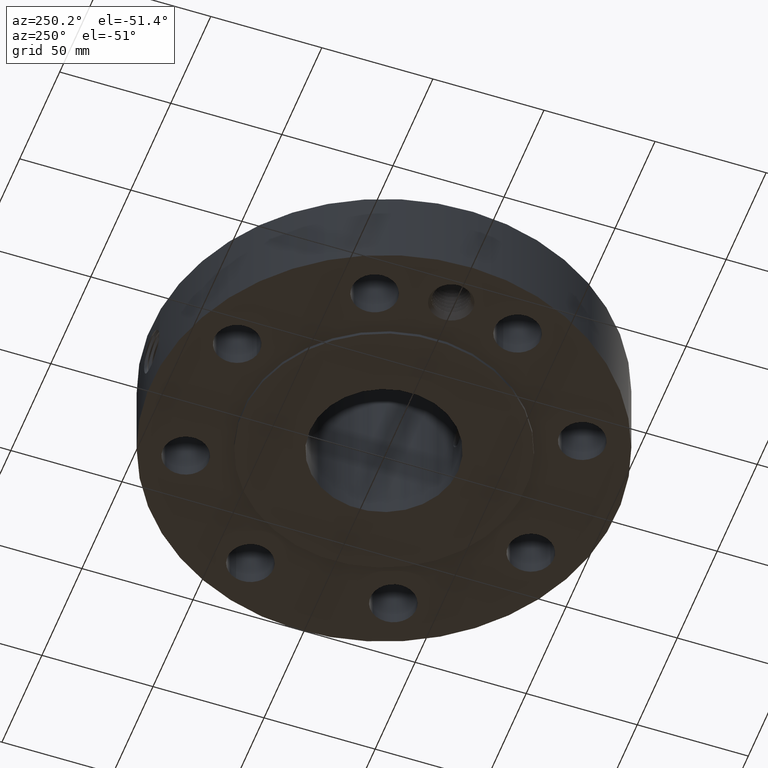
[diagram: clean part render]
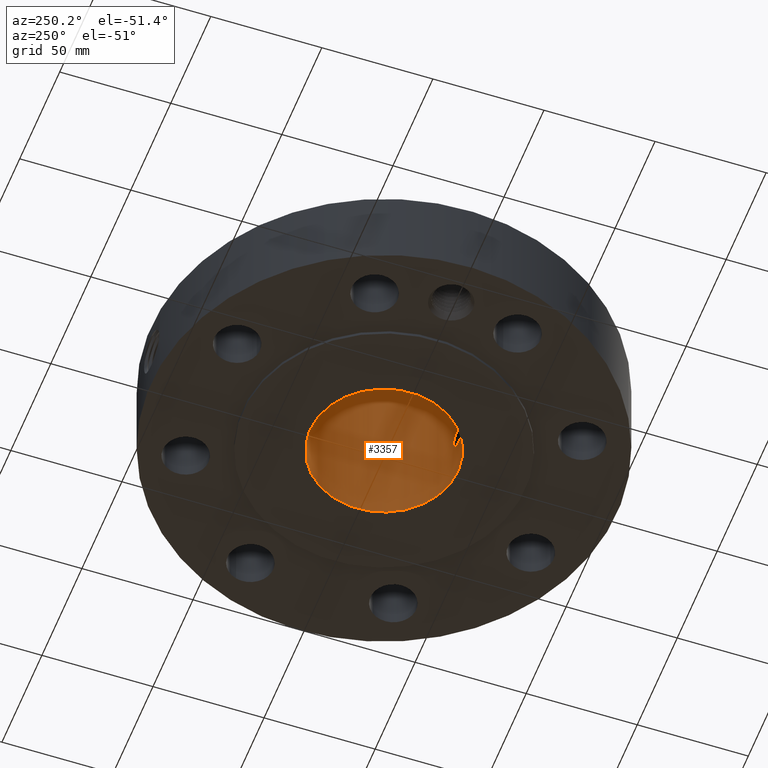
[diagram: same view with one face highlighted and labeled with its STEP entity id]
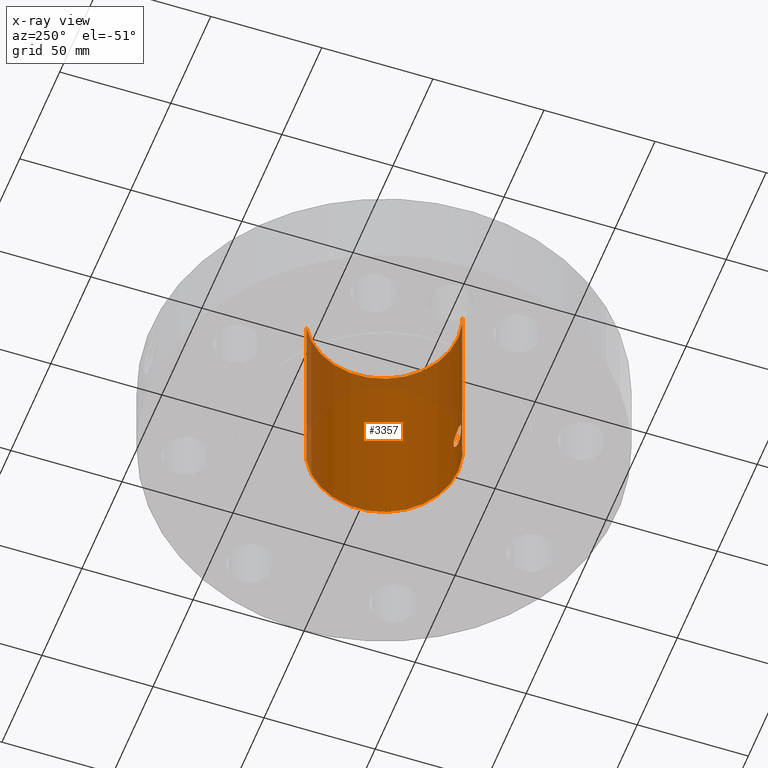
[diagram: x-ray of the same camera — body ghosted, the highlighted face saturated]
A machine part, auxiliary view. The second image highlights one B-rep face of the part: STEP entity #3357.
The next image is the same camera in x-ray: the body ghosted, the highlighted face saturated — about 27% of this face is hidden behind the body in this view.
In plain terms, the highlighted cylindrical surface (partial cylindrical patch) has radius 33.3248 mm, axis along (0, 0, -1).
Its self-contained STEP definition (entity closure, byte-faithful):
#2488=AXIS2_PLACEMENT_3D('Circle Axis2P3D',#2486,#2487,$) ;
#3288=AXIS2_PLACEMENT_3D('Cylinder Axis2P3D',#3285,#3286,#3287) ;
#3292=AXIS2_PLACEMENT_3D('Circle Axis2P3D',#3290,#3291,$) ;
#2486=CARTESIAN_POINT('Axis2P3D Location',(0.,0.,0.)) ;
#2490=CARTESIAN_POINT('Vertex',(0.629006306651,1.1513883212,-1.95818864186E-015)) ;
#2492=CARTESIAN_POINT('Vertex',(-0.629006306651,-1.1513883212,-1.95818864186E-015)) ;
#3285=CARTESIAN_POINT('Axis2P3D Location',(0.,0.,1.78000000001)) ;
#3290=CARTESIAN_POINT('Axis2P3D Location',(0.,0.,3.56000000001)) ;
#3294=CARTESIAN_POINT('Vertex',(0.629006306651,1.1513883212,3.56000000001)) ;
#3296=CARTESIAN_POINT('Vertex',(-0.629006306651,-1.1513883212,3.56000000001)) ;
#3299=CARTESIAN_POINT('Line Origine',(0.629006306651,1.1513883212,1.78000000001)) ;
#3304=CARTESIAN_POINT('Line Origine',(-0.629006306651,-1.1513883212,1.78000000001)) ;
#3316=CARTESIAN_POINT('Control Point',(0.16674068676,-1.3013614192,0.848909147669)) ;
#3317=CARTESIAN_POINT('Control Point',(0.155854090365,-1.30275629578,0.828981366637)) ;
#3318=CARTESIAN_POINT('Control Point',(0.141998251541,-1.30441590584,0.810694248983)) ;
#3319=CARTESIAN_POINT('Control Point',(0.125495833433,-1.30617306159,0.794623054119)) ;
#3320=CARTESIAN_POINT('Control Point',(0.0789659109735,-1.31022969843,0.761272820103)) ;
#3321=CARTESIAN_POINT('Control Point',(0.0227116709128,-1.31249113031,0.746672150112)) ;
#3322=CARTESIAN_POINT('Control Point',(-0.0125163085577,-1.31264129171,0.745742255864)) ;
#3323=CARTESIAN_POINT('Control Point',(-0.0865714825054,-1.31024752775,0.760862294571)) ;
#3324=CARTESIAN_POINT('Control Point',(-0.145860306477,-1.3043975898,0.808505232513)) ;
#3325=CARTESIAN_POINT('Control Point',(-0.170291354128,-1.30102131544,0.842127783378)) ;
#3326=CARTESIAN_POINT('Control Point',(-0.193186261976,-1.29771600406,0.902800041584)) ;
#3327=CARTESIAN_POINT('Control Point',(-0.190308363571,-1.29811934656,0.966238217387)) ;
#3328=CARTESIAN_POINT('Control Point',(-0.185714093268,-1.29881219227,0.989131850793)) ;
#3329=CARTESIAN_POINT('Control Point',(-0.177744038941,-1.29995158296,1.01094935127)) ;
#3330=CARTESIAN_POINT('Control Point',(-0.16674068676,-1.3013614192,1.03109085234)) ;
#3331=CARTESIAN_POINT('Vertex',(0.16674068676,-1.3013614192,0.848909147669)) ;
#3333=CARTESIAN_POINT('Vertex',(-0.16674068676,-1.3013614192,1.03109085234)) ;
#3337=CARTESIAN_POINT('Control Point',(-0.16674068676,-1.3013614192,1.03109085234)) ;
#3338=CARTESIAN_POINT('Control Point',(-0.155854090363,-1.30275629578,1.05101863338)) ;
#3339=CARTESIAN_POINT('Control Point',(-0.141998251535,-1.30441590584,1.06930575103)) ;
#3340=CARTESIAN_POINT('Control Point',(-0.12549583344,-1.30617306159,1.08537694588)) ;
#3341=CARTESIAN_POINT('Control Point',(-0.0789659109758,-1.31022969843,1.11872717991)) ;
#3342=CARTESIAN_POINT('Control Point',(-0.0227116709082,-1.31249113031,1.1333278499)) ;
#3343=CARTESIAN_POINT('Control Point',(0.0125163085577,-1.31264129171,1.13425774414)) ;
#3344=CARTESIAN_POINT('Control Point',(0.0865714825006,-1.31024752775,1.11913770544)) ;
#3345=CARTESIAN_POINT('Control Point',(0.145860306468,-1.3043975898,1.0714947675)) ;
#3346=CARTESIAN_POINT('Control Point',(0.170291354134,-1.30102131544,1.03787221662)) ;
#3347=CARTESIAN_POINT('Control Point',(0.193186261977,-1.29771600406,0.977199958415)) ;
#3348=CARTESIAN_POINT('Control Point',(0.190308363571,-1.29811934656,0.913761782617)) ;
#3349=CARTESIAN_POINT('Control Point',(0.185714093268,-1.29881219227,0.890868149216)) ;
#3350=CARTESIAN_POINT('Control Point',(0.177744038941,-1.29995158296,0.869050648734)) ;
#3351=CARTESIAN_POINT('Control Point',(0.16674068676,-1.3013614192,0.848909147669)) ;
#2487=DIRECTION('Axis2P3D Direction',(0.,0.,-0.0393700787402)) ;
#3286=DIRECTION('Axis2P3D Direction',(0.,0.,-0.0393700787402)) ;
#3287=DIRECTION('Axis2P3D XDirection',(-0.0188750212049,-0.0345504945626,0.)) ;
#3291=DIRECTION('Axis2P3D Direction',(0.,0.,-0.0393700787402)) ;
#3300=DIRECTION('Vector Direction',(0.,0.,-0.0393700787402)) ;
#3305=DIRECTION('Vector Direction',(0.,0.,-0.0393700787402)) ;
#3301=VECTOR('Line Direction',#3300,0.0393700787402) ;
#3306=VECTOR('Line Direction',#3305,0.0393700787402) ;
#3310=ORIENTED_EDGE('',*,*,#3298,.F.) ;
#3311=ORIENTED_EDGE('',*,*,#3303,.T.) ;
#3312=ORIENTED_EDGE('',*,*,#2494,.T.) ;
#3313=ORIENTED_EDGE('',*,*,#3308,.F.) ;
#3354=ORIENTED_EDGE('',*,*,#3335,.F.) ;
#3355=ORIENTED_EDGE('',*,*,#3352,.F.) ;
#3356=FACE_BOUND('',#3353,.T.) ;
#3357=ADVANCED_FACE('PartBody',(#3314,#3356),#3289,.F.) ;
#3315=B_SPLINE_CURVE_WITH_KNOTS('',5,(#3316,#3317,#3318,#3319,#3320,#3321,#3322,#3323,#3324,#3325,#3326,#3327,#3328,#3329,#3330),.UNSPECIFIED.,.F.,.U.,(6,3,3,3,6),(0.,4.08608608142,10.1941220473,17.3391593747,21.4690676183),.UNSPECIFIED.) ;
#3336=B_SPLINE_CURVE_WITH_KNOTS('',5,(#3337,#3338,#3339,#3340,#3341,#3342,#3343,#3344,#3345,#3346,#3347,#3348,#3349,#3350,#3351),.UNSPECIFIED.,.F.,.U.,(6,3,3,3,6),(0.,4.08608608233,10.1941220484,17.3391593747,21.4690676184),.UNSPECIFIED.) ;
#2489=CIRCLE('generated circle',#2488,1.31200000001) ;
#3293=CIRCLE('generated circle',#3292,1.31200000001) ;
#3289=CYLINDRICAL_SURFACE('generated cylinder',#3288,1.31200000001) ;
#2494=EDGE_CURVE('',#2491,#2493,#2489,.T.) ;
#3298=EDGE_CURVE('',#3295,#3297,#3293,.T.) ;
#3303=EDGE_CURVE('',#3295,#2491,#3302,.T.) ;
#3308=EDGE_CURVE('',#3297,#2493,#3307,.T.) ;
#3335=EDGE_CURVE('',#3332,#3334,#3315,.T.) ;
#3352=EDGE_CURVE('',#3334,#3332,#3336,.T.) ;
#3309=EDGE_LOOP('',(#3310,#3311,#3312,#3313)) ;
#3353=EDGE_LOOP('',(#3354,#3355)) ;
#3314=FACE_OUTER_BOUND('',#3309,.T.) ;
#3302=LINE('Line',#3299,#3301) ;
#3307=LINE('Line',#3304,#3306) ;
#2491=VERTEX_POINT('',#2490) ;
#2493=VERTEX_POINT('',#2492) ;
#3295=VERTEX_POINT('',#3294) ;
#3297=VERTEX_POINT('',#3296) ;
#3332=VERTEX_POINT('',#3331) ;
#3334=VERTEX_POINT('',#3333) ;